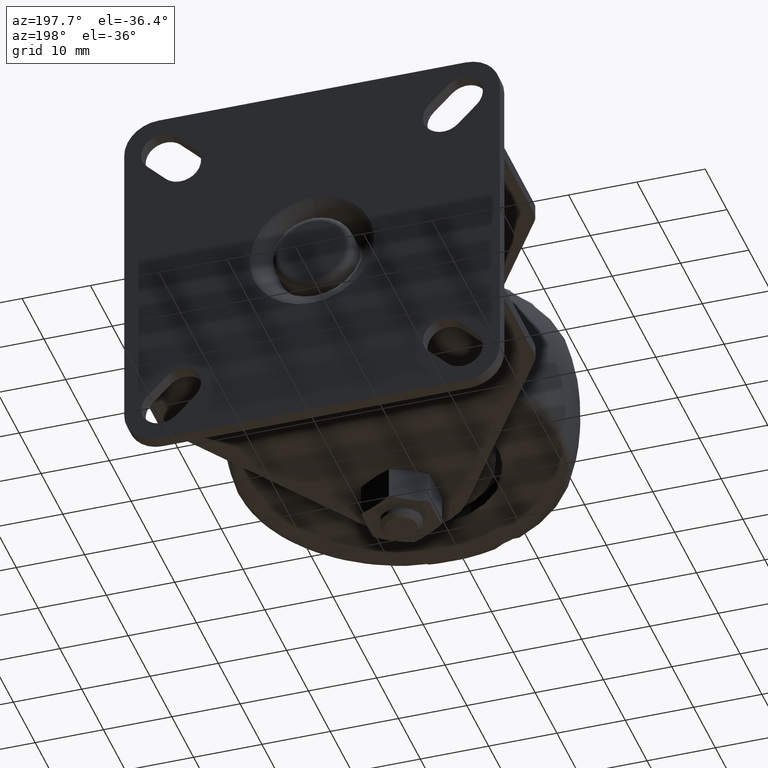
[diagram: clean part render]
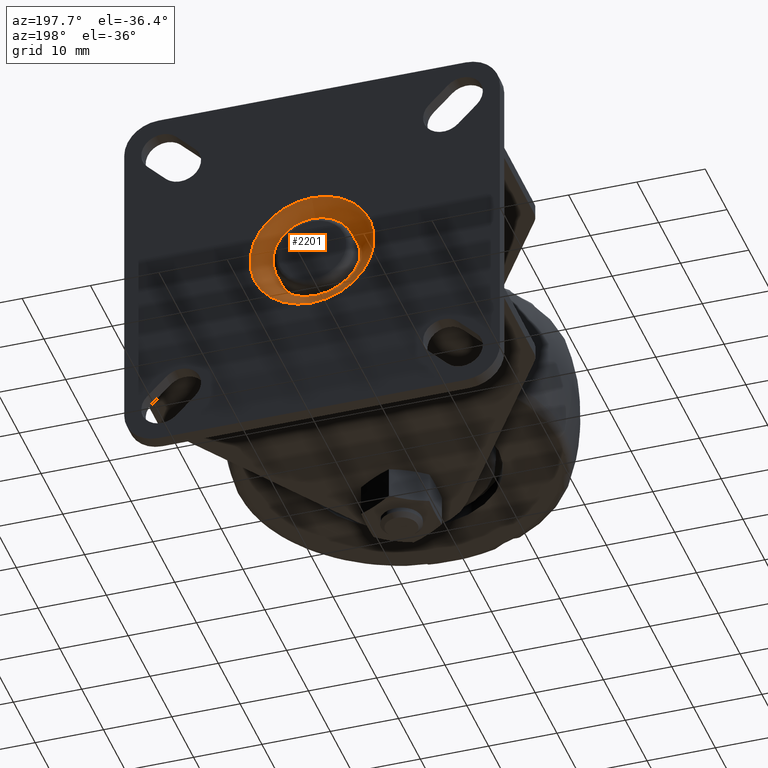
[diagram: same view with one face highlighted and labeled with its STEP entity id]
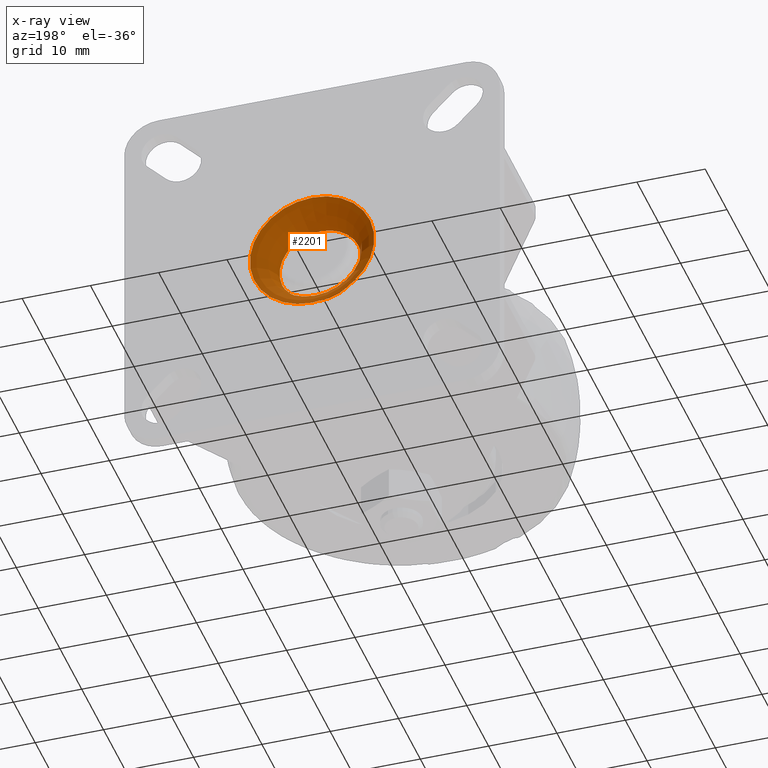
[diagram: x-ray of the same camera — body ghosted, the highlighted face saturated]
A machine part, auxiliary view. The second image highlights one B-rep face of the part: STEP entity #2201.
The next image is the same camera in x-ray: the body ghosted, the highlighted face saturated — about 0% of this face is hidden behind the body in this view.
In plain terms, the highlighted toroidal blend (fillet) surface has major radius 10 mm and minor (blend) radius 4 mm.
Its self-contained STEP definition (entity closure, byte-faithful):
#170=TOROIDAL_SURFACE('',#2575,10.,4.);
#293=FACE_OUTER_BOUND('',#448,.T.);
#448=EDGE_LOOP('',(#1648,#1649,#1650,#1651));
#869=CIRCLE('',#2564,9.1111805583);
#879=CIRCLE('',#2576,4.);
#880=CIRCLE('',#2577,6.);
#1052=VERTEX_POINT('',#3719);
#1070=VERTEX_POINT('',#3757);
#1269=EDGE_CURVE('',#1052,#1052,#869,.T.);
#1287=EDGE_CURVE('',#1052,#1070,#879,.T.);
#1288=EDGE_CURVE('',#1070,#1070,#880,.T.);
#1648=ORIENTED_EDGE('',*,*,#1269,.F.);
#1649=ORIENTED_EDGE('',*,*,#1287,.T.);
#1650=ORIENTED_EDGE('',*,*,#1288,.T.);
#1651=ORIENTED_EDGE('',*,*,#1287,.F.);
#2201=ADVANCED_FACE('',(#293),#170,.T.);
#2564=AXIS2_PLACEMENT_3D('',#3720,#2970,#2971);
#2575=AXIS2_PLACEMENT_3D('',#3756,#3000,#3001);
#2576=AXIS2_PLACEMENT_3D('',#3758,#3002,#3003);
#2577=AXIS2_PLACEMENT_3D('',#3759,#3004,#3005);
#2970=DIRECTION('center_axis',(0.,-1.,0.));
#2971=DIRECTION('ref_axis',(0.,0.,-1.));
#3000=DIRECTION('center_axis',(0.,-1.,0.));
#3001=DIRECTION('ref_axis',(0.,0.,-1.));
#3002=DIRECTION('center_axis',(-1.,0.,-1.22464679914735E-16));
#3003=DIRECTION('ref_axis',(-1.22464679914735E-16,0.,1.));
#3004=DIRECTION('center_axis',(0.,-1.,0.));
#3005=DIRECTION('ref_axis',(0.,0.,-1.));
#3719=CARTESIAN_POINT('',(-1.11579781071757E-15,41.,9.1111805583));
#3720=CARTESIAN_POINT('Origin',(0.,41.,0.));
#3756=CARTESIAN_POINT('Origin',(0.,37.1,0.));
#3757=CARTESIAN_POINT('',(-7.34788079488412E-16,37.1,6.));
#3758=CARTESIAN_POINT('Origin',(-1.22464679914735E-15,37.1,10.));
#3759=CARTESIAN_POINT('Origin',(0.,37.1,0.));